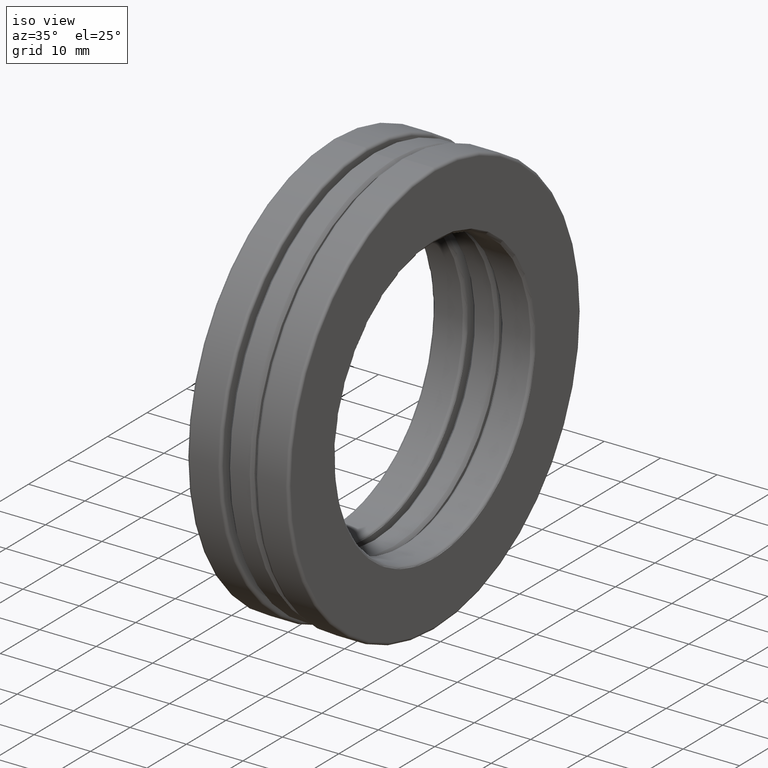
[diagram: clean part render]
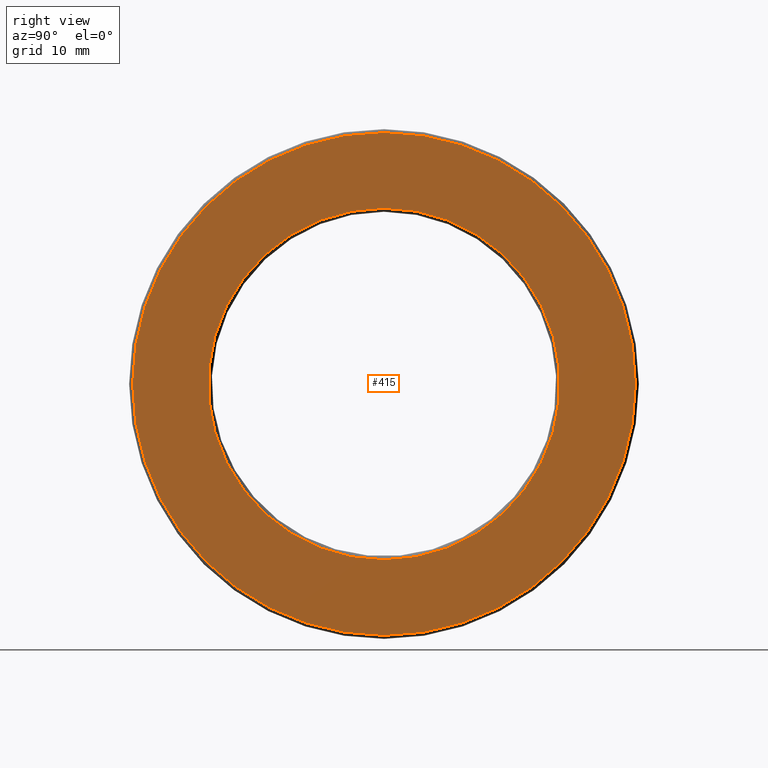
[diagram: tour spotlight — one face highlighted and labeled with its STEP entity id]
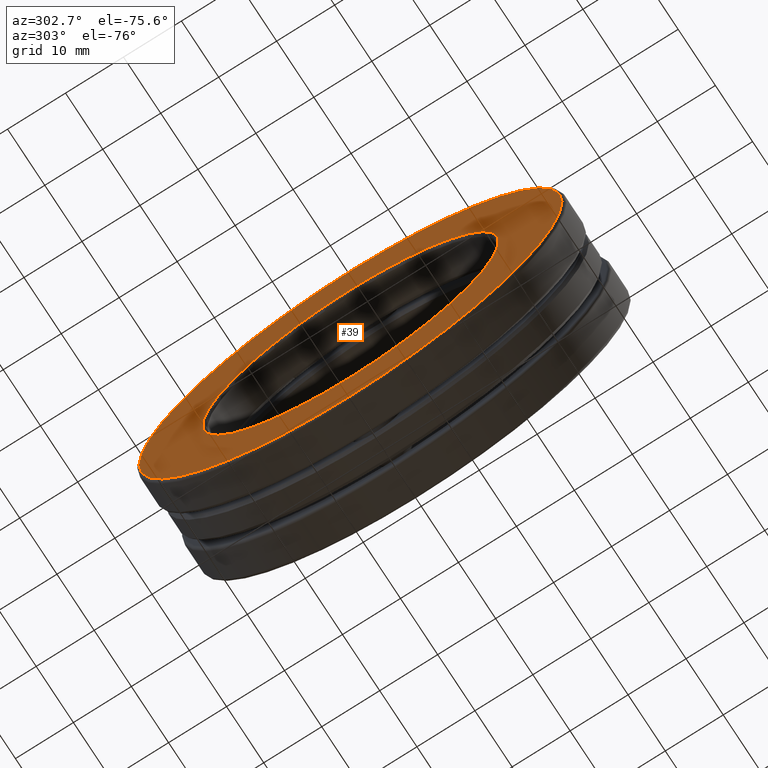
[diagram: tour spotlight — one face highlighted and labeled with its STEP entity id]
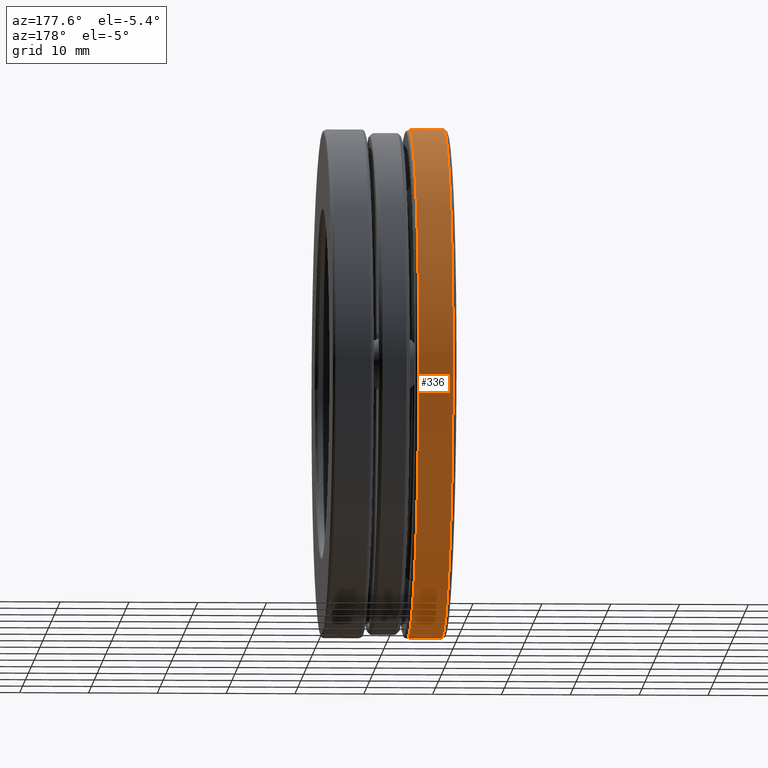
[diagram: tour spotlight — one face highlighted and labeled with its STEP entity id]
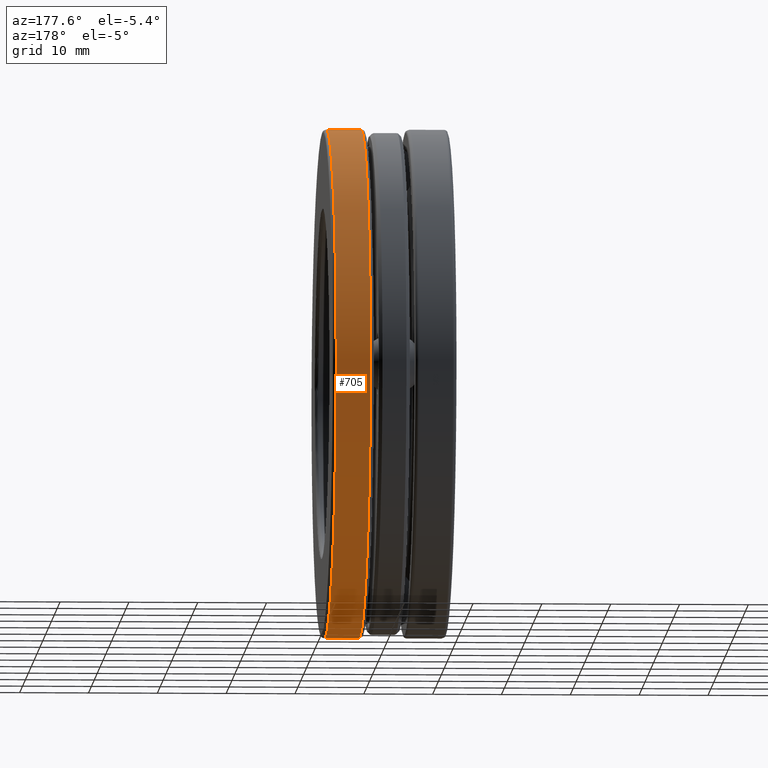
[diagram: tour spotlight — one face highlighted and labeled with its STEP entity id]
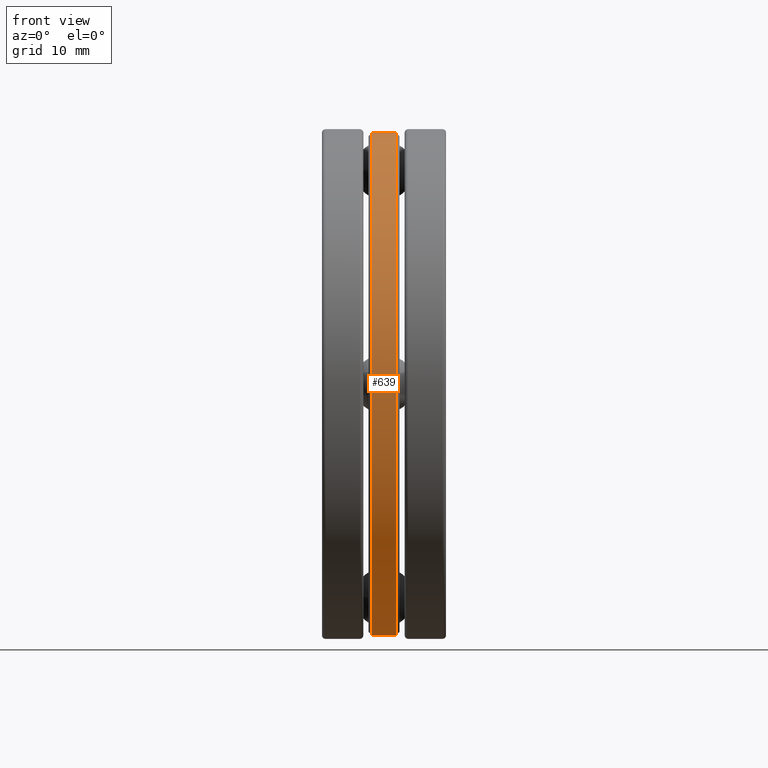
[diagram: tour spotlight — one face highlighted and labeled with its STEP entity id]
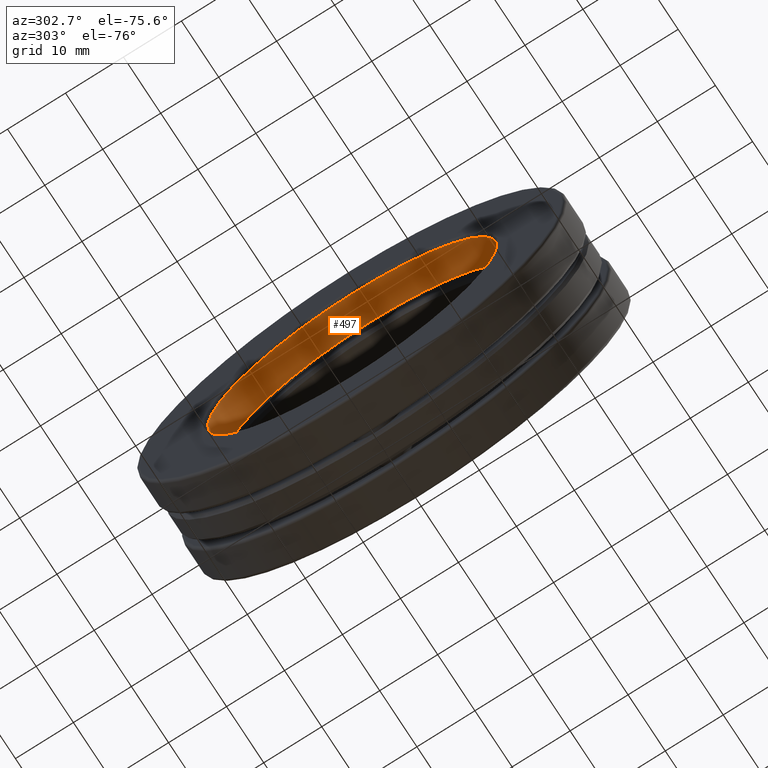
[diagram: tour spotlight — one face highlighted and labeled with its STEP entity id]
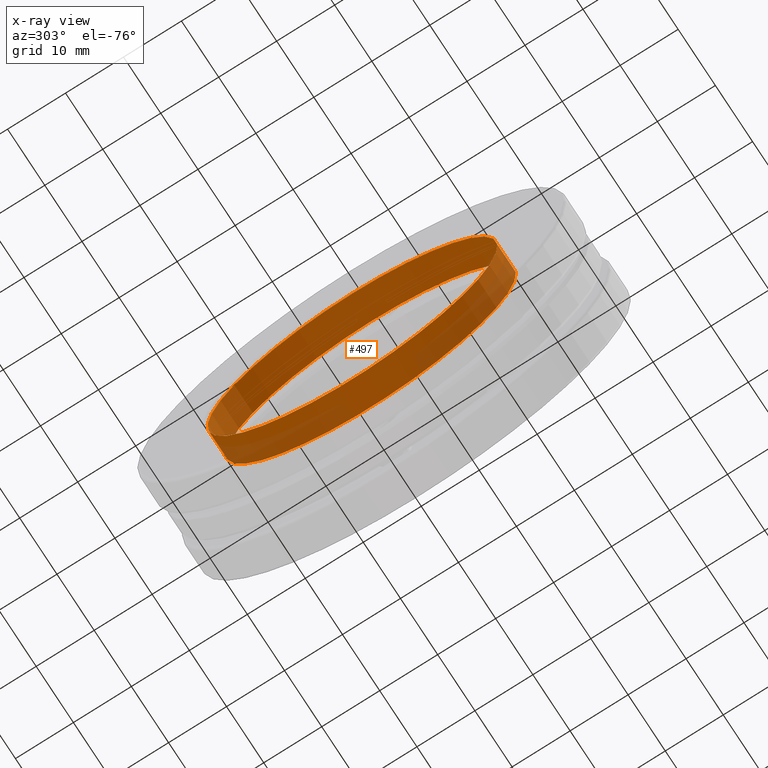
[diagram: x-ray of the same camera — body ghosted, this tour face saturated]
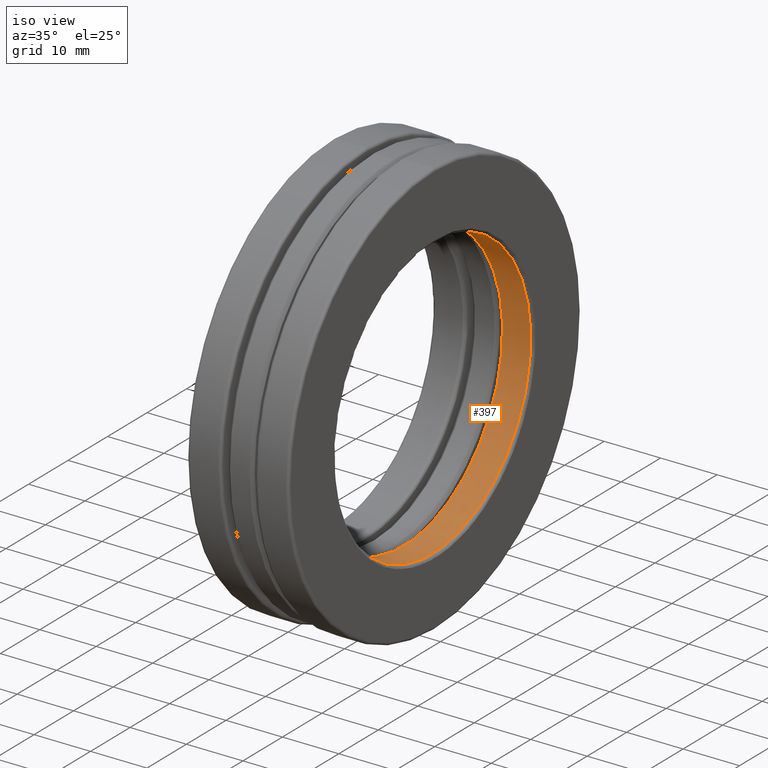
[diagram: tour spotlight — one face highlighted and labeled with its STEP entity id]
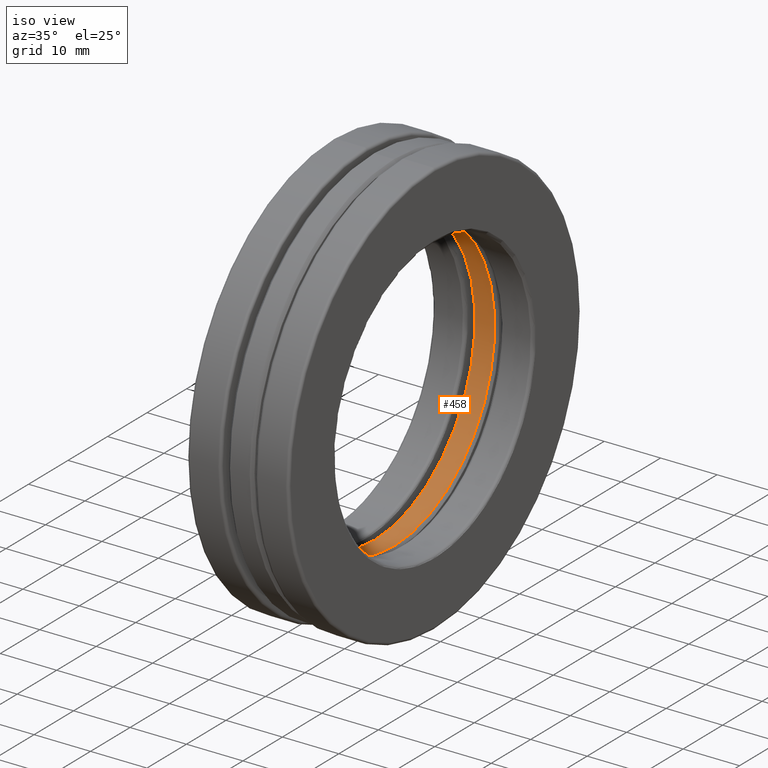
[diagram: tour spotlight — one face highlighted and labeled with its STEP entity id]
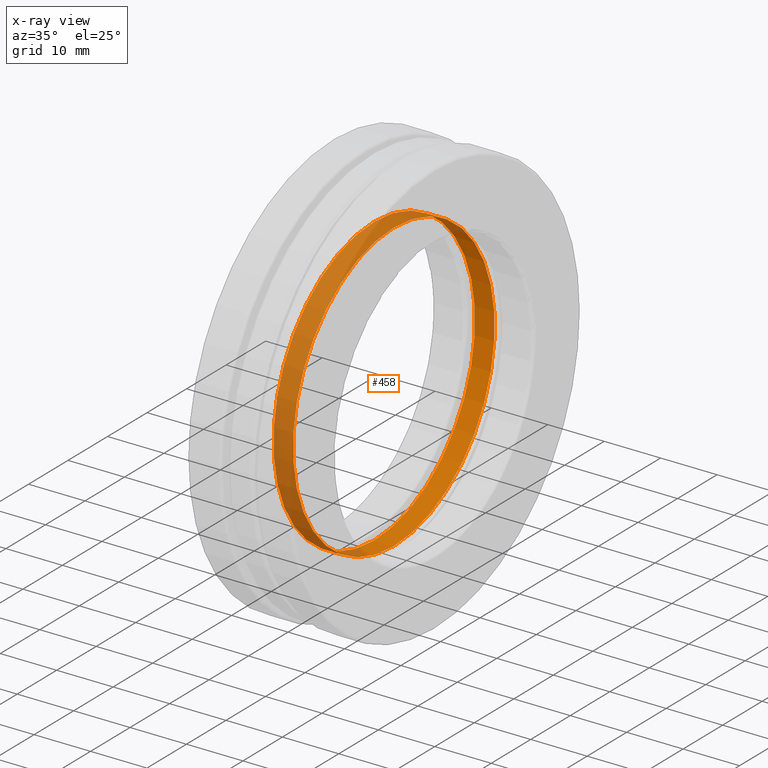
[diagram: x-ray of the same camera — body ghosted, this tour face saturated]
A machine part: a face-by-face anatomy tour. The part has 36 B-rep faces; the first image is the clean iso view, then the 8 largest visible faces are spotlighted one at a time (largest first), each with its STEP entity span.

Face 1 — right view, entity #415. In plain terms, the highlighted planar face has unit normal (1, 0, 0).
Definition (entity closure, byte-faithful):
#17 = ORIENTED_EDGE ( 'NONE', *, *, #249, .T. ) ;
#22 = DIRECTION ( 'NONE',  ( 0.0000000000000000000, 0.0000000000000000000, 1.000000000000000000 ) ) ;
#33 = CIRCLE ( 'NONE', #390, 1.436499999999999200 ) ;
#38 = EDGE_LOOP ( 'NONE', ( #17 ) ) ;
#170 = DIRECTION ( 'NONE',  ( 1.000000000000000000, 0.0000000000000000000, 0.0000000000000000000 ) ) ;
#216 = CARTESIAN_POINT ( 'NONE',  ( 0.3545000000000001500, 0.0000000000000000000, 0.0000000000000000000 ) ) ;
#249 = EDGE_CURVE ( 'NONE', #778, #778, #528, .T. ) ;
#261 = ORIENTED_EDGE ( 'NONE', *, *, #785, .F. ) ;
#314 = AXIS2_PLACEMENT_3D ( 'NONE', #660, #471, #723 ) ;
#368 = CARTESIAN_POINT ( 'NONE',  ( 0.3545000000000001500, 0.0000000000000000000, 0.0000000000000000000 ) ) ;
#389 = VERTEX_POINT ( 'NONE', #510 ) ;
#390 = AXIS2_PLACEMENT_3D ( 'NONE', #216, #590, #22 ) ;
#415 = ADVANCED_FACE ( 'NONE', ( #784, #452 ), #741, .T. ) ;
#428 = DIRECTION ( 'NONE',  ( 0.0000000000000000000, 0.0000000000000000000, -1.000000000000000000 ) ) ;
#452 = FACE_OUTER_BOUND ( 'NONE', #464, .T. ) ;
#464 = EDGE_LOOP ( 'NONE', ( #261 ) ) ;
#471 = DIRECTION ( 'NONE',  ( -1.000000000000000000, -0.0000000000000000000, -0.0000000000000000000 ) ) ;
#510 = CARTESIAN_POINT ( 'NONE',  ( 0.3545000000000001500, 0.0000000000000000000, 1.436499999999999200 ) ) ;
#528 = CIRCLE ( 'NONE', #314, 1.004499999999999900 ) ;
#590 = DIRECTION ( 'NONE',  ( -1.000000000000000000, -0.0000000000000000000, -0.0000000000000000000 ) ) ;
#660 = CARTESIAN_POINT ( 'NONE',  ( 0.3545000000000001500, 0.0000000000000000000, 0.0000000000000000000 ) ) ;
#713 = AXIS2_PLACEMENT_3D ( 'NONE', #368, #170, #428 ) ;
#723 = DIRECTION ( 'NONE',  ( 0.0000000000000000000, 0.0000000000000000000, 1.000000000000000000 ) ) ;
#741 = PLANE ( 'NONE',  #713 ) ;
#778 = VERTEX_POINT ( 'NONE', #797 ) ;
#784 = FACE_BOUND ( 'NONE', #38, .T. ) ;
#785 = EDGE_CURVE ( 'NONE', #389, #389, #33, .T. ) ;
#797 = CARTESIAN_POINT ( 'NONE',  ( 0.3545000000000001500, 0.0000000000000000000, 1.004499999999999900 ) ) ;

Face 2 — auxiliary view, entity #39. In plain terms, the highlighted planar face has unit normal (1, 0, 0).
Definition (entity closure, byte-faithful):
#13 = EDGE_CURVE ( 'NONE', #94, #94, #128, .T. ) ;
#39 = ADVANCED_FACE ( 'NONE', ( #683, #304 ), #692, .F. ) ;
#42 = CIRCLE ( 'NONE', #459, 1.436499999999999400 ) ;
#54 = CARTESIAN_POINT ( 'NONE',  ( -0.3544999999999998700, 0.0000000000000000000, 0.0000000000000000000 ) ) ;
#66 = DIRECTION ( 'NONE',  ( 0.0000000000000000000, 0.0000000000000000000, 1.000000000000000000 ) ) ;
#89 = AXIS2_PLACEMENT_3D ( 'NONE', #762, #321, #376 ) ;
#94 = VERTEX_POINT ( 'NONE', #733 ) ;
#128 = CIRCLE ( 'NONE', #527, 1.004499999999999900 ) ;
#175 = ORIENTED_EDGE ( 'NONE', *, *, #492, .T. ) ;
#195 = DIRECTION ( 'NONE',  ( -1.000000000000000000, -0.0000000000000000000, -0.0000000000000000000 ) ) ;
#234 = VERTEX_POINT ( 'NONE', #518 ) ;
#304 = FACE_OUTER_BOUND ( 'NONE', #758, .T. ) ;
#319 = ORIENTED_EDGE ( 'NONE', *, *, #13, .F. ) ;
#321 = DIRECTION ( 'NONE',  ( 1.000000000000000000, 0.0000000000000000000, 0.0000000000000000000 ) ) ;
#376 = DIRECTION ( 'NONE',  ( 0.0000000000000000000, 0.0000000000000000000, -1.000000000000000000 ) ) ;
#459 = AXIS2_PLACEMENT_3D ( 'NONE', #556, #619, #66 ) ;
#492 = EDGE_CURVE ( 'NONE', #234, #234, #42, .T. ) ;
#518 = CARTESIAN_POINT ( 'NONE',  ( -0.3544999999999998700, 0.0000000000000000000, 1.436499999999999400 ) ) ;
#527 = AXIS2_PLACEMENT_3D ( 'NONE', #54, #195, #625 ) ;
#556 = CARTESIAN_POINT ( 'NONE',  ( -0.3544999999999998700, 0.0000000000000000000, 0.0000000000000000000 ) ) ;
#599 = EDGE_LOOP ( 'NONE', ( #319 ) ) ;
#619 = DIRECTION ( 'NONE',  ( -1.000000000000000000, -0.0000000000000000000, -0.0000000000000000000 ) ) ;
#625 = DIRECTION ( 'NONE',  ( 0.0000000000000000000, 0.0000000000000000000, 1.000000000000000000 ) ) ;
#683 = FACE_BOUND ( 'NONE', #599, .T. ) ;
#692 = PLANE ( 'NONE',  #89 ) ;
#733 = CARTESIAN_POINT ( 'NONE',  ( -0.3544999999999998700, 0.0000000000000000000, 1.004499999999999900 ) ) ;
#758 = EDGE_LOOP ( 'NONE', ( #175 ) ) ;
#762 = CARTESIAN_POINT ( 'NONE',  ( -0.3544999999999998700, 0.0000000000000000000, 0.0000000000000000000 ) ) ;

Face 3 — auxiliary view, entity #336. In plain terms, the highlighted cylindrical surface (bore or boss wall) has radius 36.9951 mm, axis along (-1, -0, -0).
Definition (entity closure, byte-faithful):
#12 = DIRECTION ( 'NONE',  ( 0.0000000000000000000, 0.0000000000000000000, 1.000000000000000000 ) ) ;
#25 = DIRECTION ( 'NONE',  ( -1.000000000000000000, -0.0000000000000000000, -0.0000000000000000000 ) ) ;
#27 = DIRECTION ( 'NONE',  ( 0.0000000000000000000, 0.0000000000000000000, 1.000000000000000000 ) ) ;
#31 = CARTESIAN_POINT ( 'NONE',  ( -0.3344999999999999600, 0.0000000000000000000, 1.456499999999999700 ) ) ;
#132 = CIRCLE ( 'NONE', #447, 1.456499999999999700 ) ;
#165 = DIRECTION ( 'NONE',  ( 0.0000000000000000000, 0.0000000000000000000, 1.000000000000000000 ) ) ;
#197 = AXIS2_PLACEMENT_3D ( 'NONE', #294, #513, #165 ) ;
#252 = CYLINDRICAL_SURFACE ( 'NONE', #674, 1.456499999999999700 ) ;
#270 = ORIENTED_EDGE ( 'NONE', *, *, #480, .T. ) ;
#294 = CARTESIAN_POINT ( 'NONE',  ( -0.1381690299999999100, 0.0000000000000000000, 0.0000000000000000000 ) ) ;
#295 = ORIENTED_EDGE ( 'NONE', *, *, #695, .F. ) ;
#336 = ADVANCED_FACE ( 'NONE', ( #431, #809 ), #252, .T. ) ;
#357 = CIRCLE ( 'NONE', #197, 1.456499999999999700 ) ;
#394 = DIRECTION ( 'NONE',  ( -1.000000000000000000, -0.0000000000000000000, -0.0000000000000000000 ) ) ;
#407 = CARTESIAN_POINT ( 'NONE',  ( -0.1381690299999999100, 0.0000000000000000000, 1.456499999999999700 ) ) ;
#409 = CARTESIAN_POINT ( 'NONE',  ( 0.0000000000000000000, 0.0000000000000000000, 0.0000000000000000000 ) ) ;
#431 = FACE_OUTER_BOUND ( 'NONE', #572, .T. ) ;
#447 = AXIS2_PLACEMENT_3D ( 'NONE', #772, #394, #12 ) ;
#465 = VERTEX_POINT ( 'NONE', #31 ) ;
#480 = EDGE_CURVE ( 'NONE', #555, #555, #357, .T. ) ;
#513 = DIRECTION ( 'NONE',  ( -1.000000000000000000, -0.0000000000000000000, -0.0000000000000000000 ) ) ;
#555 = VERTEX_POINT ( 'NONE', #407 ) ;
#572 = EDGE_LOOP ( 'NONE', ( #295 ) ) ;
#674 = AXIS2_PLACEMENT_3D ( 'NONE', #409, #25, #27 ) ;
#695 = EDGE_CURVE ( 'NONE', #465, #465, #132, .T. ) ;
#772 = CARTESIAN_POINT ( 'NONE',  ( -0.3344999999999999600, 0.0000000000000000000, 0.0000000000000000000 ) ) ;
#809 = FACE_OUTER_BOUND ( 'NONE', #820, .T. ) ;
#820 = EDGE_LOOP ( 'NONE', ( #270 ) ) ;

Face 4 — auxiliary view, entity #705. In plain terms, the highlighted cylindrical surface (bore or boss wall) has radius 36.9951 mm, axis along (-1, -0, -0).
Definition (entity closure, byte-faithful):
#40 = ORIENTED_EDGE ( 'NONE', *, *, #631, .F. ) ;
#46 = AXIS2_PLACEMENT_3D ( 'NONE', #349, #155, #91 ) ;
#71 = EDGE_LOOP ( 'NONE', ( #40 ) ) ;
#77 = CARTESIAN_POINT ( 'NONE',  ( 0.0000000000000000000, 0.0000000000000000000, 0.0000000000000000000 ) ) ;
#91 = DIRECTION ( 'NONE',  ( 0.0000000000000000000, 0.0000000000000000000, 1.000000000000000000 ) ) ;
#97 = FACE_OUTER_BOUND ( 'NONE', #636, .T. ) ;
#142 = DIRECTION ( 'NONE',  ( -1.000000000000000000, -0.0000000000000000000, -0.0000000000000000000 ) ) ;
#150 = VERTEX_POINT ( 'NONE', #783 ) ;
#155 = DIRECTION ( 'NONE',  ( -1.000000000000000000, -0.0000000000000000000, -0.0000000000000000000 ) ) ;
#160 = CARTESIAN_POINT ( 'NONE',  ( 0.3345000000000006900, 0.0000000000000000000, 1.456499999999999700 ) ) ;
#273 = CARTESIAN_POINT ( 'NONE',  ( 0.1381690300000006100, 0.0000000000000000000, 0.0000000000000000000 ) ) ;
#349 = CARTESIAN_POINT ( 'NONE',  ( 0.3345000000000006900, 0.0000000000000000000, 0.0000000000000000000 ) ) ;
#501 = DIRECTION ( 'NONE',  ( -1.000000000000000000, -0.0000000000000000000, -0.0000000000000000000 ) ) ;
#504 = CYLINDRICAL_SURFACE ( 'NONE', #612, 1.456499999999999700 ) ;
#542 = VERTEX_POINT ( 'NONE', #160 ) ;
#544 = CIRCLE ( 'NONE', #597, 1.456499999999999700 ) ;
#597 = AXIS2_PLACEMENT_3D ( 'NONE', #273, #501, #775 ) ;
#612 = AXIS2_PLACEMENT_3D ( 'NONE', #77, #142, #638 ) ;
#613 = FACE_OUTER_BOUND ( 'NONE', #71, .T. ) ;
#631 = EDGE_CURVE ( 'NONE', #150, #150, #544, .T. ) ;
#636 = EDGE_LOOP ( 'NONE', ( #648 ) ) ;
#638 = DIRECTION ( 'NONE',  ( 0.0000000000000000000, 0.0000000000000000000, 1.000000000000000000 ) ) ;
#648 = ORIENTED_EDGE ( 'NONE', *, *, #760, .T. ) ;
#705 = ADVANCED_FACE ( 'NONE', ( #613, #97 ), #504, .T. ) ;
#712 = CIRCLE ( 'NONE', #46, 1.456499999999999700 ) ;
#760 = EDGE_CURVE ( 'NONE', #542, #542, #712, .T. ) ;
#775 = DIRECTION ( 'NONE',  ( 0.0000000000000000000, 0.0000000000000000000, 1.000000000000000000 ) ) ;
#783 = CARTESIAN_POINT ( 'NONE',  ( 0.1381690300000006100, 0.0000000000000000000, 1.456499999999999700 ) ) ;

Face 5 — front view, entity #639. In plain terms, the highlighted cylindrical surface (bore or boss wall) has radius 36.4871 mm, axis along (-1, -0, -0).
Definition (entity closure, byte-faithful):
#20 = AXIS2_PLACEMENT_3D ( 'NONE', #351, #731, #469 ) ;
#127 = CIRCLE ( 'NONE', #20, 1.436499999999999400 ) ;
#162 = ORIENTED_EDGE ( 'NONE', *, *, #615, .T. ) ;
#164 = FACE_OUTER_BOUND ( 'NONE', #647, .T. ) ;
#209 = DIRECTION ( 'NONE',  ( 0.0000000000000000000, 0.0000000000000000000, 1.000000000000000000 ) ) ;
#223 = ORIENTED_EDGE ( 'NONE', *, *, #330, .F. ) ;
#239 = AXIS2_PLACEMENT_3D ( 'NONE', #400, #574, #209 ) ;
#262 = VERTEX_POINT ( 'NONE', #583 ) ;
#276 = AXIS2_PLACEMENT_3D ( 'NONE', #337, #770, #396 ) ;
#330 = EDGE_CURVE ( 'NONE', #262, #262, #127, .T. ) ;
#337 = CARTESIAN_POINT ( 'NONE',  ( 0.0000000000000000000, 0.0000000000000000000, 0.0000000000000000000 ) ) ;
#351 = CARTESIAN_POINT ( 'NONE',  ( -0.06862500000000001900, 0.0000000000000000000, 0.0000000000000000000 ) ) ;
#378 = EDGE_LOOP ( 'NONE', ( #162 ) ) ;
#392 = CYLINDRICAL_SURFACE ( 'NONE', #276, 1.436499999999999400 ) ;
#396 = DIRECTION ( 'NONE',  ( 0.0000000000000000000, 0.0000000000000000000, 1.000000000000000000 ) ) ;
#400 = CARTESIAN_POINT ( 'NONE',  ( 0.06862500000000000500, 0.0000000000000000000, 0.0000000000000000000 ) ) ;
#414 = CARTESIAN_POINT ( 'NONE',  ( 0.06862500000000000500, 0.0000000000000000000, 1.436499999999999400 ) ) ;
#469 = DIRECTION ( 'NONE',  ( 0.0000000000000000000, 0.0000000000000000000, 1.000000000000000000 ) ) ;
#574 = DIRECTION ( 'NONE',  ( -1.000000000000000000, -0.0000000000000000000, -0.0000000000000000000 ) ) ;
#583 = CARTESIAN_POINT ( 'NONE',  ( -0.06862500000000001900, 0.0000000000000000000, 1.436499999999999400 ) ) ;
#615 = EDGE_CURVE ( 'NONE', #676, #676, #728, .T. ) ;
#639 = ADVANCED_FACE ( 'NONE', ( #768, #164 ), #392, .T. ) ;
#647 = EDGE_LOOP ( 'NONE', ( #223 ) ) ;
#676 = VERTEX_POINT ( 'NONE', #414 ) ;
#728 = CIRCLE ( 'NONE', #239, 1.436499999999999400 ) ;
#731 = DIRECTION ( 'NONE',  ( -1.000000000000000000, -0.0000000000000000000, -0.0000000000000000000 ) ) ;
#768 = FACE_OUTER_BOUND ( 'NONE', #378, .T. ) ;
#770 = DIRECTION ( 'NONE',  ( -1.000000000000000000, -0.0000000000000000000, -0.0000000000000000000 ) ) ;

Face 6 — auxiliary view, entity #497. An x-ray twin of the same camera follows (body ghosted, this face saturated) — the face is partly hidden behind the body. In plain terms, the highlighted cylindrical surface (bore or boss wall) has radius 25.0063 mm, axis along (-1, -0, -0).
Definition (entity closure, byte-faithful):
#4 = VERTEX_POINT ( 'NONE', #794 ) ;
#44 = DIRECTION ( 'NONE',  ( 0.0000000000000000000, 0.0000000000000000000, 1.000000000000000000 ) ) ;
#45 = EDGE_CURVE ( 'NONE', #4, #4, #673, .T. ) ;
#57 = ORIENTED_EDGE ( 'NONE', *, *, #45, .F. ) ;
#211 = EDGE_LOOP ( 'NONE', ( #332 ) ) ;
#235 = CYLINDRICAL_SURFACE ( 'NONE', #633, 0.9844999999999999300 ) ;
#247 = DIRECTION ( 'NONE',  ( -1.000000000000000000, -0.0000000000000000000, -0.0000000000000000000 ) ) ;
#313 = DIRECTION ( 'NONE',  ( 0.0000000000000000000, 0.0000000000000000000, 1.000000000000000000 ) ) ;
#320 = FACE_OUTER_BOUND ( 'NONE', #211, .T. ) ;
#332 = ORIENTED_EDGE ( 'NONE', *, *, #512, .T. ) ;
#359 = CARTESIAN_POINT ( 'NONE',  ( -0.1381690299999999100, 0.0000000000000000000, 0.0000000000000000000 ) ) ;
#482 = CIRCLE ( 'NONE', #732, 0.9844999999999999300 ) ;
#497 = ADVANCED_FACE ( 'NONE', ( #320, #652 ), #235, .F. ) ;
#512 = EDGE_CURVE ( 'NONE', #649, #649, #482, .T. ) ;
#633 = AXIS2_PLACEMENT_3D ( 'NONE', #740, #754, #714 ) ;
#649 = VERTEX_POINT ( 'NONE', #799 ) ;
#652 = FACE_OUTER_BOUND ( 'NONE', #757, .T. ) ;
#665 = DIRECTION ( 'NONE',  ( -1.000000000000000000, -0.0000000000000000000, -0.0000000000000000000 ) ) ;
#673 = CIRCLE ( 'NONE', #817, 0.9844999999999999300 ) ;
#714 = DIRECTION ( 'NONE',  ( 0.0000000000000000000, 0.0000000000000000000, 1.000000000000000000 ) ) ;
#732 = AXIS2_PLACEMENT_3D ( 'NONE', #801, #665, #44 ) ;
#740 = CARTESIAN_POINT ( 'NONE',  ( 0.0000000000000000000, 0.0000000000000000000, 0.0000000000000000000 ) ) ;
#754 = DIRECTION ( 'NONE',  ( -1.000000000000000000, -0.0000000000000000000, -0.0000000000000000000 ) ) ;
#757 = EDGE_LOOP ( 'NONE', ( #57 ) ) ;
#794 = CARTESIAN_POINT ( 'NONE',  ( -0.1381690299999999100, 0.0000000000000000000, 0.9844999999999999300 ) ) ;
#799 = CARTESIAN_POINT ( 'NONE',  ( -0.3344999999999999600, 0.0000000000000000000, 0.9844999999999999300 ) ) ;
#801 = CARTESIAN_POINT ( 'NONE',  ( -0.3344999999999999600, 0.0000000000000000000, 0.0000000000000000000 ) ) ;
#817 = AXIS2_PLACEMENT_3D ( 'NONE', #359, #247, #313 ) ;

Face 7 — iso view, entity #397. In plain terms, the highlighted cylindrical surface (bore or boss wall) has radius 25.0063 mm, axis along (-1, -0, -0).
Definition (entity closure, byte-faithful):
#35 = DIRECTION ( 'NONE',  ( -1.000000000000000000, -0.0000000000000000000, -0.0000000000000000000 ) ) ;
#41 = CARTESIAN_POINT ( 'NONE',  ( 0.3345000000000006900, 0.0000000000000000000, 0.0000000000000000000 ) ) ;
#73 = AXIS2_PLACEMENT_3D ( 'NONE', #696, #258, #327 ) ;
#78 = CYLINDRICAL_SURFACE ( 'NONE', #299, 0.9844999999999999300 ) ;
#80 = EDGE_LOOP ( 'NONE', ( #675 ) ) ;
#144 = EDGE_CURVE ( 'NONE', #759, #759, #277, .T. ) ;
#173 = DIRECTION ( 'NONE',  ( -1.000000000000000000, -0.0000000000000000000, -0.0000000000000000000 ) ) ;
#258 = DIRECTION ( 'NONE',  ( -1.000000000000000000, -0.0000000000000000000, -0.0000000000000000000 ) ) ;
#277 = CIRCLE ( 'NONE', #73, 0.9844999999999999300 ) ;
#291 = CIRCLE ( 'NONE', #338, 0.9844999999999999300 ) ;
#299 = AXIS2_PLACEMENT_3D ( 'NONE', #813, #35, #302 ) ;
#302 = DIRECTION ( 'NONE',  ( 0.0000000000000000000, 0.0000000000000000000, 1.000000000000000000 ) ) ;
#327 = DIRECTION ( 'NONE',  ( 0.0000000000000000000, 0.0000000000000000000, 1.000000000000000000 ) ) ;
#329 = FACE_OUTER_BOUND ( 'NONE', #80, .T. ) ;
#338 = AXIS2_PLACEMENT_3D ( 'NONE', #41, #173, #606 ) ;
#346 = CARTESIAN_POINT ( 'NONE',  ( 0.3345000000000006900, 0.0000000000000000000, 0.9844999999999999300 ) ) ;
#397 = ADVANCED_FACE ( 'NONE', ( #329, #627 ), #78, .F. ) ;
#404 = EDGE_CURVE ( 'NONE', #443, #443, #291, .T. ) ;
#443 = VERTEX_POINT ( 'NONE', #346 ) ;
#481 = ORIENTED_EDGE ( 'NONE', *, *, #404, .F. ) ;
#571 = EDGE_LOOP ( 'NONE', ( #481 ) ) ;
#606 = DIRECTION ( 'NONE',  ( 0.0000000000000000000, 0.0000000000000000000, 1.000000000000000000 ) ) ;
#627 = FACE_OUTER_BOUND ( 'NONE', #571, .T. ) ;
#655 = CARTESIAN_POINT ( 'NONE',  ( 0.1381690300000006100, 0.0000000000000000000, 0.9844999999999999300 ) ) ;
#675 = ORIENTED_EDGE ( 'NONE', *, *, #144, .T. ) ;
#696 = CARTESIAN_POINT ( 'NONE',  ( 0.1381690300000006100, 0.0000000000000000000, 0.0000000000000000000 ) ) ;
#759 = VERTEX_POINT ( 'NONE', #655 ) ;
#813 = CARTESIAN_POINT ( 'NONE',  ( 0.0000000000000000000, 0.0000000000000000000, 0.0000000000000000000 ) ) ;

Face 8 — iso view, entity #458. An x-ray twin of the same camera follows (body ghosted, this face saturated) — the face is partly hidden behind the body. In plain terms, the highlighted cylindrical surface (bore or boss wall) has radius 25.5143 mm, axis along (-1, -0, -0).
Definition (entity closure, byte-faithful):
#5 = CIRCLE ( 'NONE', #689, 1.004499999999999900 ) ;
#10 = ORIENTED_EDGE ( 'NONE', *, *, #157, .T. ) ;
#72 = CYLINDRICAL_SURFACE ( 'NONE', #148, 1.004499999999999900 ) ;
#148 = AXIS2_PLACEMENT_3D ( 'NONE', #782, #159, #356 ) ;
#157 = EDGE_CURVE ( 'NONE', #325, #325, #408, .T. ) ;
#159 = DIRECTION ( 'NONE',  ( -1.000000000000000000, -0.0000000000000000000, -0.0000000000000000000 ) ) ;
#219 = EDGE_LOOP ( 'NONE', ( #10 ) ) ;
#287 = CARTESIAN_POINT ( 'NONE',  ( 0.06862500000000003300, 0.0000000000000000000, 1.004499999999999900 ) ) ;
#324 = EDGE_LOOP ( 'NONE', ( #800 ) ) ;
#325 = VERTEX_POINT ( 'NONE', #343 ) ;
#343 = CARTESIAN_POINT ( 'NONE',  ( -0.06862499999999997800, 0.0000000000000000000, 1.004499999999999900 ) ) ;
#356 = DIRECTION ( 'NONE',  ( 0.0000000000000000000, 0.0000000000000000000, 1.000000000000000000 ) ) ;
#395 = DIRECTION ( 'NONE',  ( -1.000000000000000000, -0.0000000000000000000, -0.0000000000000000000 ) ) ;
#408 = CIRCLE ( 'NONE', #538, 1.004499999999999900 ) ;
#412 = VERTEX_POINT ( 'NONE', #287 ) ;
#458 = ADVANCED_FACE ( 'NONE', ( #734, #579 ), #72, .F. ) ;
#466 = DIRECTION ( 'NONE',  ( 0.0000000000000000000, 0.0000000000000000000, 1.000000000000000000 ) ) ;
#538 = AXIS2_PLACEMENT_3D ( 'NONE', #703, #395, #466 ) ;
#568 = CARTESIAN_POINT ( 'NONE',  ( 0.06862500000000003300, 0.0000000000000000000, 0.0000000000000000000 ) ) ;
#579 = FACE_OUTER_BOUND ( 'NONE', #219, .T. ) ;
#608 = EDGE_CURVE ( 'NONE', #412, #412, #5, .T. ) ;
#642 = DIRECTION ( 'NONE',  ( -1.000000000000000000, -0.0000000000000000000, -0.0000000000000000000 ) ) ;
#689 = AXIS2_PLACEMENT_3D ( 'NONE', #568, #642, #700 ) ;
#700 = DIRECTION ( 'NONE',  ( 0.0000000000000000000, 0.0000000000000000000, 1.000000000000000000 ) ) ;
#703 = CARTESIAN_POINT ( 'NONE',  ( -0.06862499999999997800, 0.0000000000000000000, 0.0000000000000000000 ) ) ;
#734 = FACE_OUTER_BOUND ( 'NONE', #324, .T. ) ;
#782 = CARTESIAN_POINT ( 'NONE',  ( 0.0000000000000000000, 0.0000000000000000000, 0.0000000000000000000 ) ) ;
#800 = ORIENTED_EDGE ( 'NONE', *, *, #608, .F. ) ;